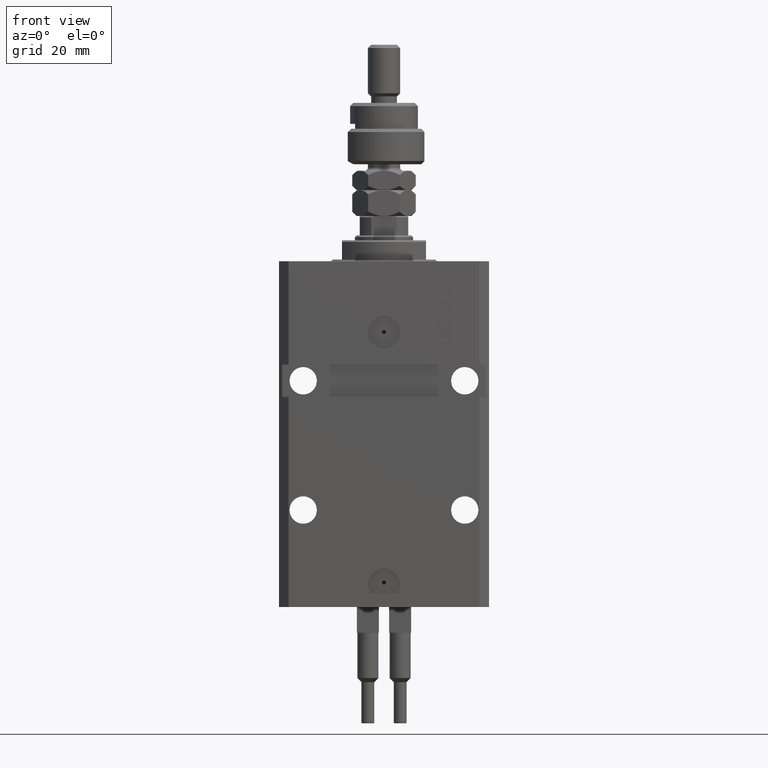
[diagram: clean part render]
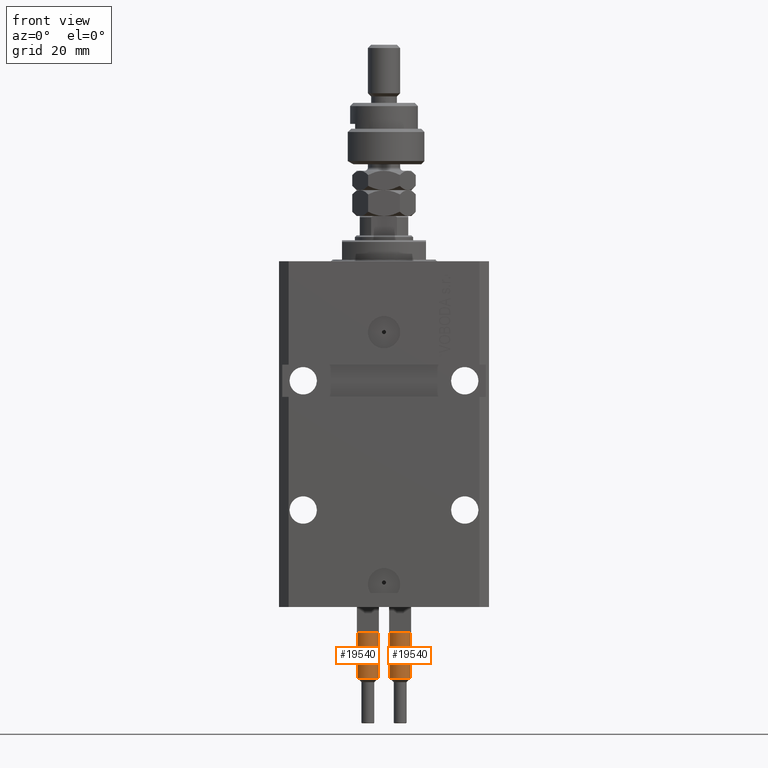
[diagram: same view with one multi-face feature highlighted, each face labeled with its STEP entity id]
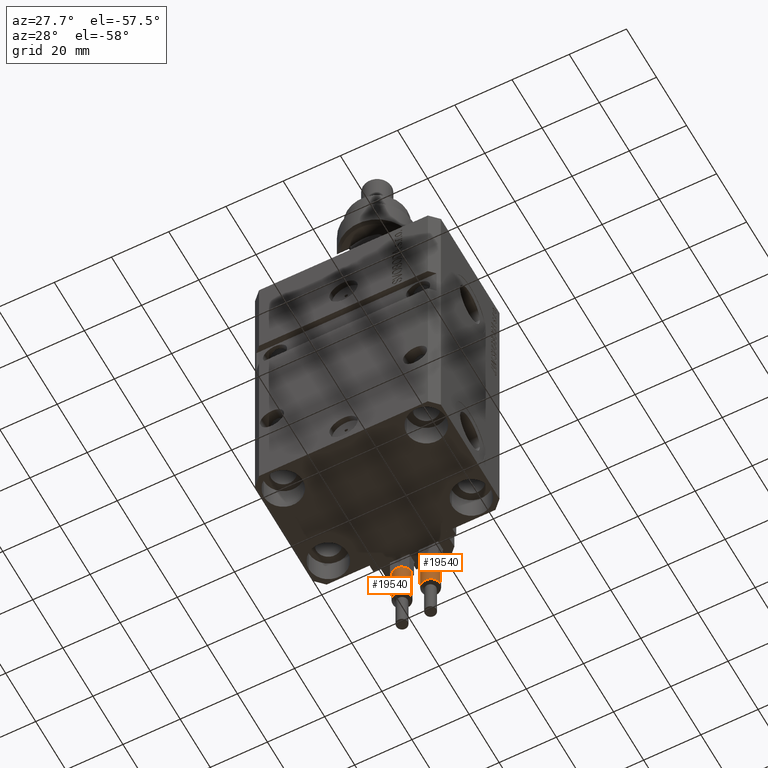
[diagram: same view with one multi-face feature highlighted, each face labeled with its STEP entity id]
A machine part, front view. The highlighted faces form ONE feature: a constant-radius fillet chain: 2 tangent blend faces with common blend radius 3.25 mm. The faces share edges in the B-rep.
A second angle (auxiliary view) of the same feature is appended — it is thin or edge-on in the first view.
Their STEP definitions:
[1] entity #19540 (Cylinder):
#146 = AXIS2_PLACEMENT_3D ( 'NONE', #33447, #5142, #21489 ) ;
#1588 = LINE ( 'NONE', #9384, #36718 ) ;
#3769 = CARTESIAN_POINT ( 'NONE',  ( -3.250000000000000444, 0.000000000000000000, 53.99999999999998579 ) ) ;
#5142 = DIRECTION ( 'NONE',  ( 0.000000000000000000, 0.000000000000000000, 1.000000000000000000 ) ) ;
#6034 = CARTESIAN_POINT ( 'NONE',  ( 0.000000000000000000, 0.000000000000000000, 40.00000000000000000 ) ) ;
#6663 = CARTESIAN_POINT ( 'NONE',  ( 0.000000000000000000, 0.000000000000000000, 56.00000000000000000 ) ) ;
#7852 = CARTESIAN_POINT ( 'NONE',  ( -3.250000000000000444, 0.000000000000000000, 40.00000000000000000 ) ) ;
#8133 = VERTEX_POINT ( 'NONE', #7852 ) ;
#9074 = DIRECTION ( 'NONE',  ( 1.000000000000000000, 0.000000000000000000, 0.000000000000000000 ) ) ;
#9224 = CIRCLE ( 'NONE', #50671, 3.250000000000000444 ) ;
#9384 = CARTESIAN_POINT ( 'NONE',  ( 3.250000000000000444, 3.980102097228898231E-16, 56.00000000000000000 ) ) ;
#9765 = CARTESIAN_POINT ( 'NONE',  ( 3.250000000000000444, 3.980102097228898231E-16, 53.99999999999998579 ) ) ;
#10553 = FACE_OUTER_BOUND ( 'NONE', #42514, .T. ) ;
#12990 = ORIENTED_EDGE ( 'NONE', *, *, #15604, .T. ) ;
#13302 = EDGE_CURVE ( 'NONE', #22962, #50684, #44113, .T. ) ;
#14810 = CARTESIAN_POINT ( 'NONE',  ( -3.250000000000000444, 0.000000000000000000, 56.00000000000000000 ) ) ;
#15068 = DIRECTION ( 'NONE',  ( -0.000000000000000000, -0.000000000000000000, -1.000000000000000000 ) ) ;
#15604 = EDGE_CURVE ( 'NONE', #50684, #20908, #9224, .T. ) ;
#18908 = ORIENTED_EDGE ( 'NONE', *, *, #13302, .T. ) ;
#18977 = CARTESIAN_POINT ( 'NONE',  ( 3.250000000000000444, 3.980102097228898231E-16, 40.00000000000000000 ) ) ;
#19540 = ADVANCED_FACE ( 'NONE', ( #10553 ), #26399, .T. ) ;
#20908 = VERTEX_POINT ( 'NONE', #18977 ) ;
#21489 = DIRECTION ( 'NONE',  ( 1.000000000000000000, 0.000000000000000000, 0.000000000000000000 ) ) ;
#21792 = VECTOR ( 'NONE', #15068, 1000.000000000000000 ) ;
#21828 = DIRECTION ( 'NONE',  ( -0.000000000000000000, -0.000000000000000000, -1.000000000000000000 ) ) ;
#21870 = DIRECTION ( 'NONE',  ( 0.000000000000000000, 0.000000000000000000, 1.000000000000000000 ) ) ;
#22501 = DIRECTION ( 'NONE',  ( -1.000000000000000000, 0.000000000000000000, 0.000000000000000000 ) ) ;
#22690 = VERTEX_POINT ( 'NONE', #9765 ) ;
#22750 = DIRECTION ( 'NONE',  ( -0.000000000000000000, -0.000000000000000000, -1.000000000000000000 ) ) ;
#22962 = VERTEX_POINT ( 'NONE', #44018 ) ;
#23506 = ORIENTED_EDGE ( 'NONE', *, *, #46627, .F. ) ;
#25692 = AXIS2_PLACEMENT_3D ( 'NONE', #40511, #41011, #9074 ) ;
#25982 = LINE ( 'NONE', #14810, #21792 ) ;
#26399 = CYLINDRICAL_SURFACE ( 'NONE', #47522, 3.250000000000000444 ) ;
#26606 = ORIENTED_EDGE ( 'NONE', *, *, #40448, .T. ) ;
#26707 = DIRECTION ( 'NONE',  ( 1.000000000000000000, 0.000000000000000000, 0.000000000000000000 ) ) ;
#26959 = DIRECTION ( 'NONE',  ( 0.000000000000000000, 0.000000000000000000, -1.000000000000000000 ) ) ;
#32037 = VERTEX_POINT ( 'NONE', #3769 ) ;
#33447 = CARTESIAN_POINT ( 'NONE',  ( 0.000000000000000000, 0.000000000000000000, 40.00000000000000000 ) ) ;
#33630 = EDGE_CURVE ( 'NONE', #22690, #32037, #35540, .T. ) ;
#35540 = CIRCLE ( 'NONE', #49633, 3.250000000000000444 ) ;
#36718 = VECTOR ( 'NONE', #21828, 1000.000000000000000 ) ;
#37715 = DIRECTION ( 'NONE',  ( 1.000000000000000000, 0.000000000000000000, 0.000000000000000000 ) ) ;
#38650 = CARTESIAN_POINT ( 'NONE',  ( 0.000000000000000000, 0.000000000000000000, 53.99999999999998579 ) ) ;
#39111 = ORIENTED_EDGE ( 'NONE', *, *, #33630, .T. ) ;
#40448 = EDGE_CURVE ( 'NONE', #8133, #22962, #40664, .T. ) ;
#40511 = CARTESIAN_POINT ( 'NONE',  ( 0.000000000000000000, 0.000000000000000000, 40.00000000000000000 ) ) ;
#40664 = CIRCLE ( 'NONE', #25692, 3.250000000000000444 ) ;
#41011 = DIRECTION ( 'NONE',  ( 0.000000000000000000, 0.000000000000000000, 1.000000000000000000 ) ) ;
#41129 = ORIENTED_EDGE ( 'NONE', *, *, #46753, .T. ) ;
#42514 = EDGE_LOOP ( 'NONE', ( #23506, #39111, #41129, #26606, #18908, #12990 ) ) ;
#44018 = CARTESIAN_POINT ( 'NONE',  ( -2.883140648667699146, -1.500000000000000000, 40.00000000000000000 ) ) ;
#44113 = CIRCLE ( 'NONE', #146, 3.250000000000000444 ) ;
#46627 = EDGE_CURVE ( 'NONE', #22690, #20908, #1588, .T. ) ;
#46648 = CARTESIAN_POINT ( 'NONE',  ( 2.883140648667699146, -1.500000000000000000, 40.00000000000000000 ) ) ;
#46753 = EDGE_CURVE ( 'NONE', #32037, #8133, #25982, .T. ) ;
#47522 = AXIS2_PLACEMENT_3D ( 'NONE', #6663, #22750, #22501 ) ;
#49633 = AXIS2_PLACEMENT_3D ( 'NONE', #38650, #26959, #26707 ) ;
#50671 = AXIS2_PLACEMENT_3D ( 'NONE', #6034, #21870, #37715 ) ;
#50684 = VERTEX_POINT ( 'NONE', #46648 ) ;
[2] entity #19540 (Cylinder):
#146 = AXIS2_PLACEMENT_3D ( 'NONE', #33447, #5142, #21489 ) ;
#1588 = LINE ( 'NONE', #9384, #36718 ) ;
#3769 = CARTESIAN_POINT ( 'NONE',  ( -3.250000000000000444, 0.000000000000000000, 53.99999999999998579 ) ) ;
#5142 = DIRECTION ( 'NONE',  ( 0.000000000000000000, 0.000000000000000000, 1.000000000000000000 ) ) ;
#6034 = CARTESIAN_POINT ( 'NONE',  ( 0.000000000000000000, 0.000000000000000000, 40.00000000000000000 ) ) ;
#6663 = CARTESIAN_POINT ( 'NONE',  ( 0.000000000000000000, 0.000000000000000000, 56.00000000000000000 ) ) ;
#7852 = CARTESIAN_POINT ( 'NONE',  ( -3.250000000000000444, 0.000000000000000000, 40.00000000000000000 ) ) ;
#8133 = VERTEX_POINT ( 'NONE', #7852 ) ;
#9074 = DIRECTION ( 'NONE',  ( 1.000000000000000000, 0.000000000000000000, 0.000000000000000000 ) ) ;
#9224 = CIRCLE ( 'NONE', #50671, 3.250000000000000444 ) ;
#9384 = CARTESIAN_POINT ( 'NONE',  ( 3.250000000000000444, 3.980102097228898231E-16, 56.00000000000000000 ) ) ;
#9765 = CARTESIAN_POINT ( 'NONE',  ( 3.250000000000000444, 3.980102097228898231E-16, 53.99999999999998579 ) ) ;
#10553 = FACE_OUTER_BOUND ( 'NONE', #42514, .T. ) ;
#12990 = ORIENTED_EDGE ( 'NONE', *, *, #15604, .T. ) ;
#13302 = EDGE_CURVE ( 'NONE', #22962, #50684, #44113, .T. ) ;
#14810 = CARTESIAN_POINT ( 'NONE',  ( -3.250000000000000444, 0.000000000000000000, 56.00000000000000000 ) ) ;
#15068 = DIRECTION ( 'NONE',  ( -0.000000000000000000, -0.000000000000000000, -1.000000000000000000 ) ) ;
#15604 = EDGE_CURVE ( 'NONE', #50684, #20908, #9224, .T. ) ;
#18908 = ORIENTED_EDGE ( 'NONE', *, *, #13302, .T. ) ;
#18977 = CARTESIAN_POINT ( 'NONE',  ( 3.250000000000000444, 3.980102097228898231E-16, 40.00000000000000000 ) ) ;
#19540 = ADVANCED_FACE ( 'NONE', ( #10553 ), #26399, .T. ) ;
#20908 = VERTEX_POINT ( 'NONE', #18977 ) ;
#21489 = DIRECTION ( 'NONE',  ( 1.000000000000000000, 0.000000000000000000, 0.000000000000000000 ) ) ;
#21792 = VECTOR ( 'NONE', #15068, 1000.000000000000000 ) ;
#21828 = DIRECTION ( 'NONE',  ( -0.000000000000000000, -0.000000000000000000, -1.000000000000000000 ) ) ;
#21870 = DIRECTION ( 'NONE',  ( 0.000000000000000000, 0.000000000000000000, 1.000000000000000000 ) ) ;
#22501 = DIRECTION ( 'NONE',  ( -1.000000000000000000, 0.000000000000000000, 0.000000000000000000 ) ) ;
#22690 = VERTEX_POINT ( 'NONE', #9765 ) ;
#22750 = DIRECTION ( 'NONE',  ( -0.000000000000000000, -0.000000000000000000, -1.000000000000000000 ) ) ;
#22962 = VERTEX_POINT ( 'NONE', #44018 ) ;
#23506 = ORIENTED_EDGE ( 'NONE', *, *, #46627, .F. ) ;
#25692 = AXIS2_PLACEMENT_3D ( 'NONE', #40511, #41011, #9074 ) ;
#25982 = LINE ( 'NONE', #14810, #21792 ) ;
#26399 = CYLINDRICAL_SURFACE ( 'NONE', #47522, 3.250000000000000444 ) ;
#26606 = ORIENTED_EDGE ( 'NONE', *, *, #40448, .T. ) ;
#26707 = DIRECTION ( 'NONE',  ( 1.000000000000000000, 0.000000000000000000, 0.000000000000000000 ) ) ;
#26959 = DIRECTION ( 'NONE',  ( 0.000000000000000000, 0.000000000000000000, -1.000000000000000000 ) ) ;
#32037 = VERTEX_POINT ( 'NONE', #3769 ) ;
#33447 = CARTESIAN_POINT ( 'NONE',  ( 0.000000000000000000, 0.000000000000000000, 40.00000000000000000 ) ) ;
#33630 = EDGE_CURVE ( 'NONE', #22690, #32037, #35540, .T. ) ;
#35540 = CIRCLE ( 'NONE', #49633, 3.250000000000000444 ) ;
#36718 = VECTOR ( 'NONE', #21828, 1000.000000000000000 ) ;
#37715 = DIRECTION ( 'NONE',  ( 1.000000000000000000, 0.000000000000000000, 0.000000000000000000 ) ) ;
#38650 = CARTESIAN_POINT ( 'NONE',  ( 0.000000000000000000, 0.000000000000000000, 53.99999999999998579 ) ) ;
#39111 = ORIENTED_EDGE ( 'NONE', *, *, #33630, .T. ) ;
#40448 = EDGE_CURVE ( 'NONE', #8133, #22962, #40664, .T. ) ;
#40511 = CARTESIAN_POINT ( 'NONE',  ( 0.000000000000000000, 0.000000000000000000, 40.00000000000000000 ) ) ;
#40664 = CIRCLE ( 'NONE', #25692, 3.250000000000000444 ) ;
#41011 = DIRECTION ( 'NONE',  ( 0.000000000000000000, 0.000000000000000000, 1.000000000000000000 ) ) ;
#41129 = ORIENTED_EDGE ( 'NONE', *, *, #46753, .T. ) ;
#42514 = EDGE_LOOP ( 'NONE', ( #23506, #39111, #41129, #26606, #18908, #12990 ) ) ;
#44018 = CARTESIAN_POINT ( 'NONE',  ( -2.883140648667699146, -1.500000000000000000, 40.00000000000000000 ) ) ;
#44113 = CIRCLE ( 'NONE', #146, 3.250000000000000444 ) ;
#46627 = EDGE_CURVE ( 'NONE', #22690, #20908, #1588, .T. ) ;
#46648 = CARTESIAN_POINT ( 'NONE',  ( 2.883140648667699146, -1.500000000000000000, 40.00000000000000000 ) ) ;
#46753 = EDGE_CURVE ( 'NONE', #32037, #8133, #25982, .T. ) ;
#47522 = AXIS2_PLACEMENT_3D ( 'NONE', #6663, #22750, #22501 ) ;
#49633 = AXIS2_PLACEMENT_3D ( 'NONE', #38650, #26959, #26707 ) ;
#50671 = AXIS2_PLACEMENT_3D ( 'NONE', #6034, #21870, #37715 ) ;
#50684 = VERTEX_POINT ( 'NONE', #46648 ) ;